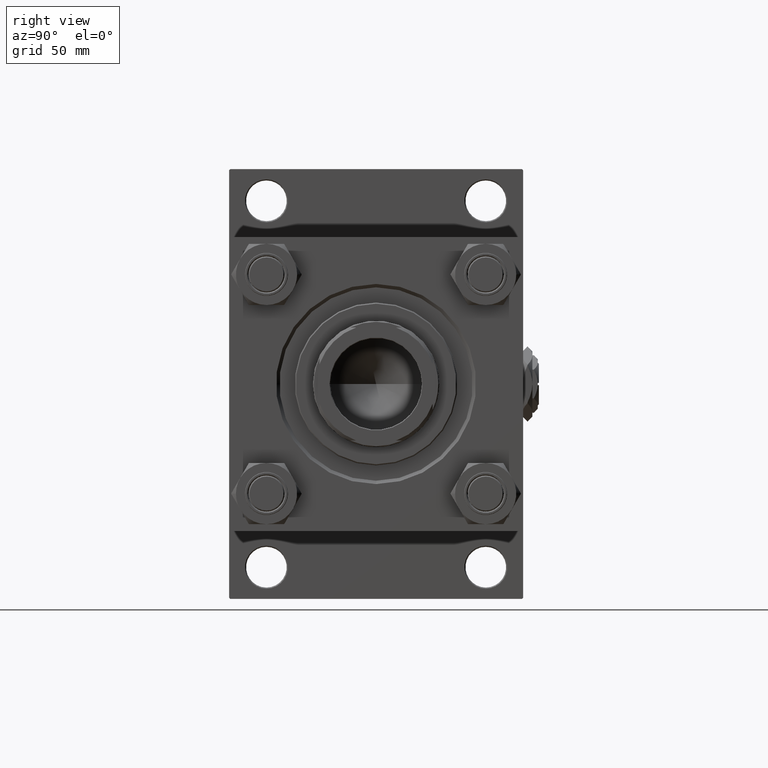
[diagram: clean part render]
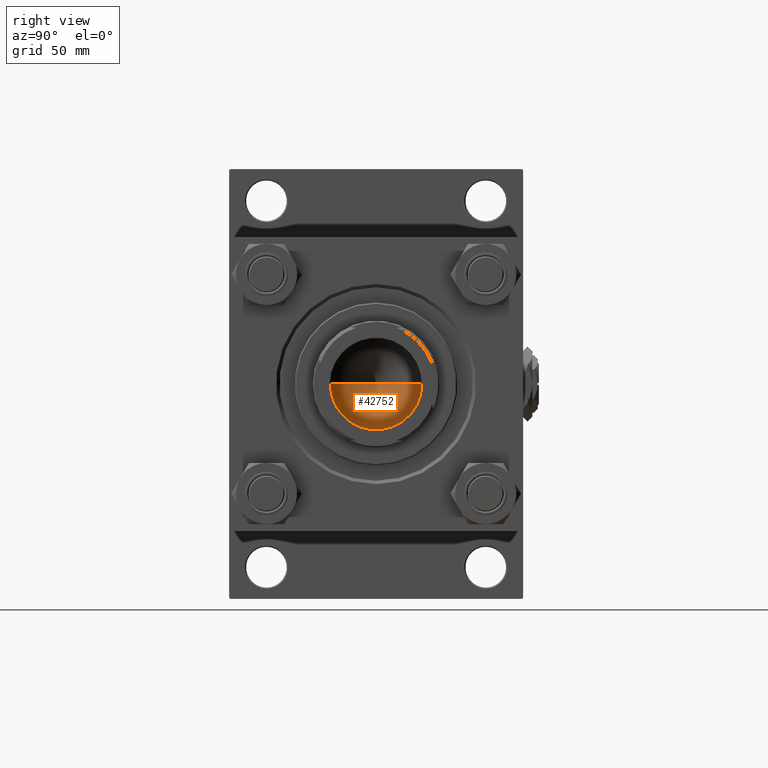
[diagram: same view with one face highlighted and labeled with its STEP entity id]
A machine part, right view. The second image highlights one B-rep face of the part: STEP entity #42752.
In plain terms, the highlighted conical surface has half-angle 59 deg.
Its self-contained STEP definition (entity closure, byte-faithful):
#2073 = CARTESIAN_POINT ( 'NONE',  ( 0.000000000000000000, 0.000000000000000000, 117.0000000000000142 ) ) ;
#4356 = DIRECTION ( 'NONE',  ( -0.000000000000000000, -0.000000000000000000, 1.000000000000000000 ) ) ;
#4612 = CONICAL_SURFACE ( 'NONE', #44275, 20.24999999999998934, 1.029744258676652979 ) ;
#4725 = VECTOR ( 'NONE', #27866, 1000.000000000000000 ) ;
#4881 = DIRECTION ( 'NONE',  ( 1.000000000000000000, 0.000000000000000000, 0.000000000000000000 ) ) ;
#10785 = DIRECTION ( 'NONE',  ( -0.000000000000000000, -0.000000000000000000, 1.000000000000000000 ) ) ;
#13891 = EDGE_CURVE ( 'NONE', #26543, #26473, #18465, .T. ) ;
#14967 = ORIENTED_EDGE ( 'NONE', *, *, #49960, .F. ) ;
#17340 = CARTESIAN_POINT ( 'NONE',  ( -20.24999999999998934, 2.479909768273389117E-15, 117.0000000000000142 ) ) ;
#18059 = VERTEX_POINT ( 'NONE', #40370 ) ;
#18465 = CIRCLE ( 'NONE', #48002, 20.24999999999998934 ) ;
#18856 = LINE ( 'NONE', #46593, #25869 ) ;
#21065 = ORIENTED_EDGE ( 'NONE', *, *, #13891, .T. ) ;
#22936 = DIRECTION ( 'NONE',  ( 1.000000000000000000, 0.000000000000000000, 0.000000000000000000 ) ) ;
#25869 = VECTOR ( 'NONE', #42880, 1000.000000000000000 ) ;
#26473 = VERTEX_POINT ( 'NONE', #17340 ) ;
#26543 = VERTEX_POINT ( 'NONE', #51930 ) ;
#27334 = CARTESIAN_POINT ( 'NONE',  ( -20.24999999999998934, 2.479909768273389117E-15, 117.0000000000000142 ) ) ;
#27866 = DIRECTION ( 'NONE',  ( -0.8571673007021115565, 1.049727191138617710E-16, 0.5150380749100554878 ) ) ;
#32365 = FACE_OUTER_BOUND ( 'NONE', #52230, .T. ) ;
#33403 = CARTESIAN_POINT ( 'NONE',  ( 0.000000000000000000, 0.000000000000000000, 117.0000000000000142 ) ) ;
#34871 = EDGE_CURVE ( 'NONE', #18059, #26543, #18856, .T. ) ;
#38309 = ORIENTED_EDGE ( 'NONE', *, *, #34871, .T. ) ;
#39207 = LINE ( 'NONE', #27334, #4725 ) ;
#40370 = CARTESIAN_POINT ( 'NONE',  ( -1.584115414415908206E-14, 0.000000000000000000, 104.8325724646918928 ) ) ;
#42752 = ADVANCED_FACE ( 'NONE', ( #32365 ), #4612, .F. ) ;
#42880 = DIRECTION ( 'NONE',  ( 0.8571673007021115565, 0.000000000000000000, 0.5150380749100554878 ) ) ;
#44275 = AXIS2_PLACEMENT_3D ( 'NONE', #33403, #4356, #4881 ) ;
#46593 = CARTESIAN_POINT ( 'NONE',  ( 20.24999999999998934, 0.000000000000000000, 117.0000000000000142 ) ) ;
#48002 = AXIS2_PLACEMENT_3D ( 'NONE', #2073, #10785, #22936 ) ;
#49960 = EDGE_CURVE ( 'NONE', #18059, #26473, #39207, .T. ) ;
#51930 = CARTESIAN_POINT ( 'NONE',  ( 20.24999999999998934, 0.000000000000000000, 117.0000000000000142 ) ) ;
#52230 = EDGE_LOOP ( 'NONE', ( #14967, #38309, #21065 ) ) ;